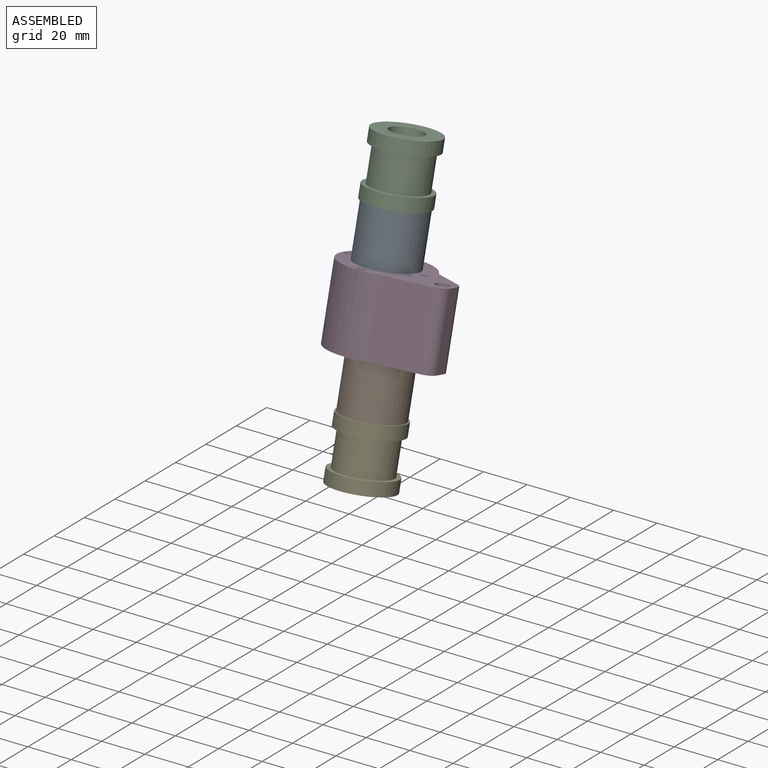
[diagram: assembled view]
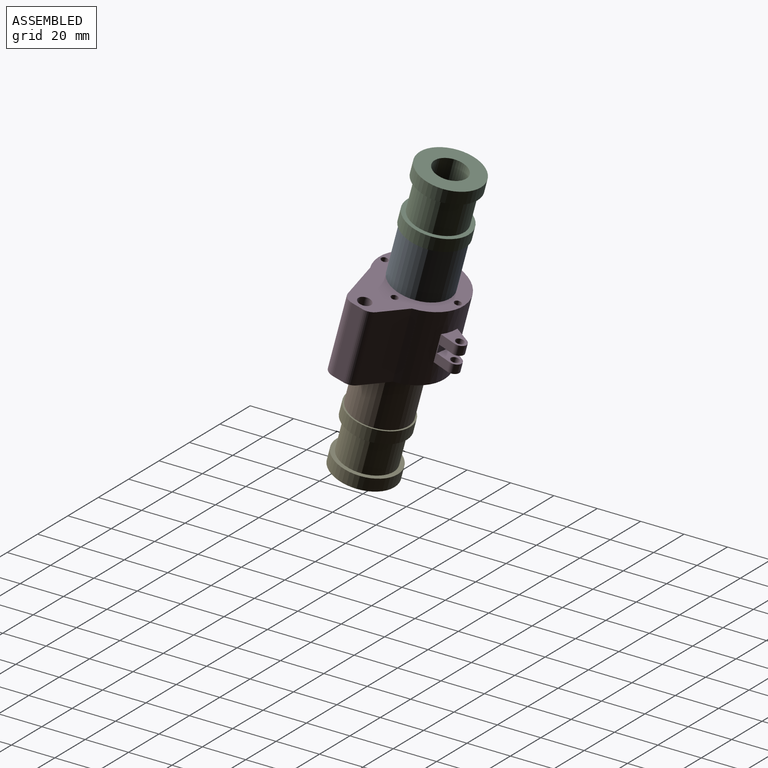
[diagram: assembled view, second angle]
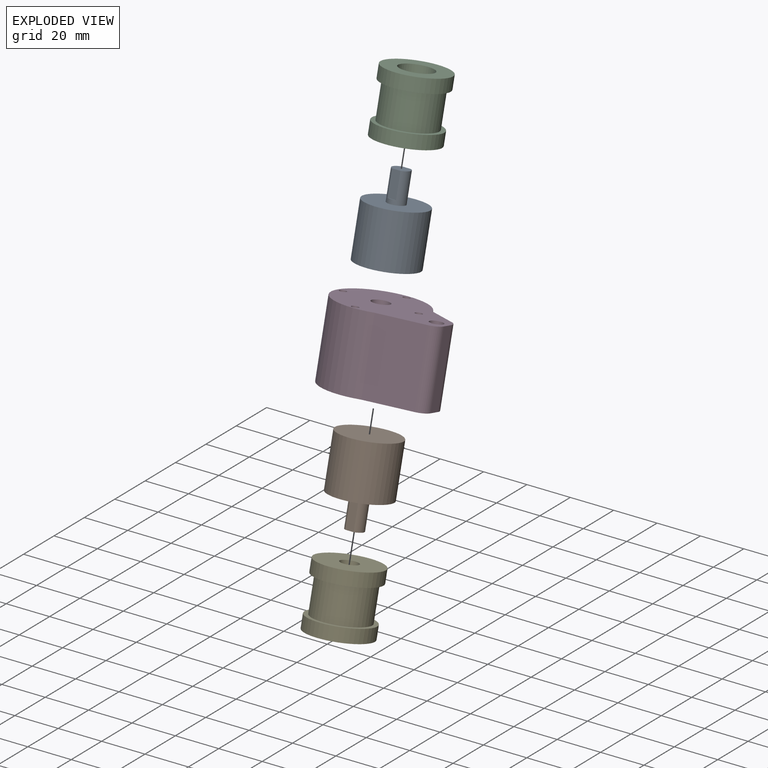
[diagram: exploded view]
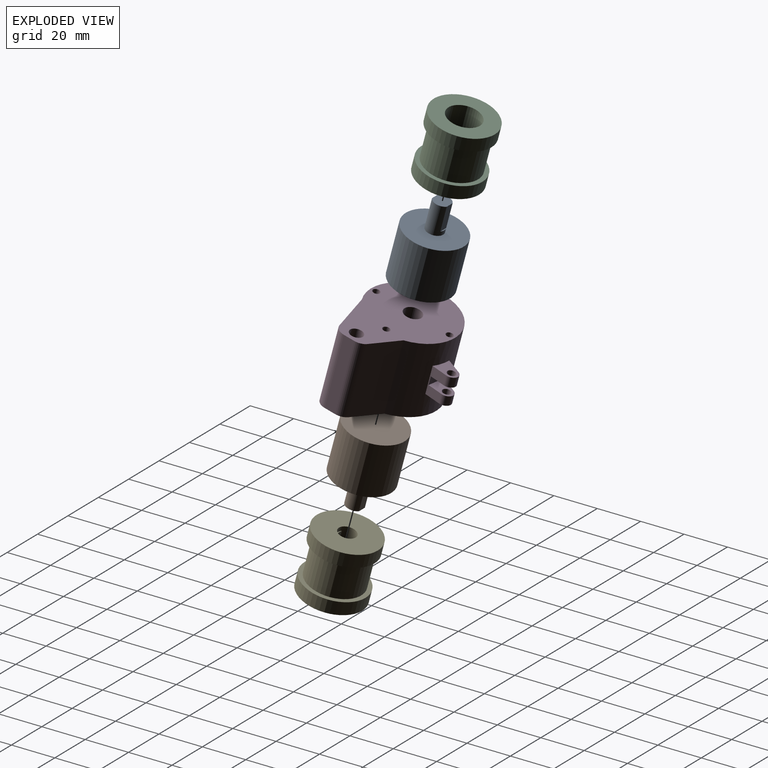
[diagram: exploded view, second angle]
ASSEMBLY  parts=5 mates=4
PART A: 9 faces, bbox 27.5x27.5x37.5 mm
  f0: cylinder r=13.75mm len=27.5mm, axis (0,0,-1), area 2073.5mm2, adj f1,f2
  f1: plane 27.5x27.5mm, normal (0,0,1), area 543.7mm2, adj f0,f3
  f2: plane 27.5x27.5mm, normal (0,0,-1), area 594mm2, adj f0
  f3: cylinder r=4mm len=13.5mm, axis (0,0,-1), area 246.3mm2, adj f1,f4,f5,f6,f7,f8
  f4: plane 11.5x3.87mm, normal (0,1,0), area 44.5mm2, adj f3,f6,f7
  f5: plane 11.5x3.87mm, normal (0,-1,0), area 44.5mm2, adj f3,f6,f8
  f6: plane 8x7mm, normal (0,0,1), area 47.6mm2, adj f3,f4,f5
  f7: plane 3.87x0.5mm, normal (0,0,1), area 1.3mm2, adj f3,f4
  f8: plane 3.87x0.5mm, normal (0,0,1), area 1.3mm2, adj f3,f5
PART B: same geometry as A
PART C: 16 faces, bbox 29x29x28 mm
  f0: cylinder r=4mm len=8mm, axis (0,0,-1), area 135.5mm2, adj f1,f8,f12,f13,f14,f15
  f1: plane 8x7mm, normal (0,0,-1), area 18.4mm2, adj f0,f11,f12,f14
  f2: cylinder r=12.5mm len=25mm, axis (0,0,-1), area 1256.6mm2, adj f4,f7
  f3: cylinder r=14.5mm len=29mm, axis (0,0,1), area 546.6mm2, adj f4,f5
  f4: plane 29x29mm, normal (0,0,-1), area 169.6mm2, adj f2,f3
  f5: plane 29x29mm, normal (0,0,1), area 483.8mm2, adj f3,f9
  f6: cylinder r=14.5mm len=29mm, axis (0,0,-1), area 546.6mm2, adj f7,f8
  f7: plane 29x29mm, normal (0,0,1), area 169.6mm2, adj f2,f6
  f8: plane 29x29mm, normal (0,0,-1), area 610.3mm2, adj f0,f6
  f9: cylinder r=7.5mm len=20mm, axis (0,0,1), area 942.5mm2, adj f5,f10
  f10: plane 15x15mm, normal (0,0,1), area 147.5mm2, adj f9,f11
  f11: cylinder r=3.05mm len=6.1mm, axis (0,0,-1), area 19.2mm2, adj f1,f10
  f12: plane 5x3.87mm, normal (0,1,0), area 19.4mm2, adj f0,f1,f13
  f13: plane 3.87x0.5mm, normal (0,0,-1), area 1.3mm2, adj f0,f12
  f14: plane 5x3.87mm, normal (0,-1,0), area 19.4mm2, adj f0,f1,f15
  f15: plane 3.87x0.5mm, normal (0,0,-1), area 1.3mm2, adj f0,f14
PART D: 30 faces, bbox 54.5x34x48.7 mm
  f0: cylinder r=3mm len=4.58mm, axis (0,1,0), area 16.8mm2, adj f1,f19,f25,f28
  f1: plane 4.58x0.08mm, normal (0.44,0,0.9), area 0.4mm2, adj f0,f2,f25,f28
  f2: cylinder r=3mm len=4.58mm, axis (0,1,0), area 21.6mm2, adj f1,f3,f25,f28
  f3: plane 7.04x4.58mm, normal (-0.9,0,0.44), area 36mm2, adj f2,f5,f25,f28
  f4: cylinder r=1.91mm len=4.58mm, axis (0,1,0), area 54.9mm2, adj f25,f28
  f5: cylinder r=20mm len=40mm, axis (0,1,0), area 3102.4mm2, adj f3,f11,f13,f14,f18,f19,f23,f25
  f6: cylinder r=4mm len=34mm, axis (0,1,0), area 854.5mm2, adj f11,f18
  f7: cylinder r=1.6mm len=34mm, axis (0,1,0), area 342.5mm2, adj f11,f18
  f8: cylinder r=1.6mm len=34mm, axis (0,1,0), area 342.5mm2, adj f11,f18
  f9: cylinder r=1.6mm len=34mm, axis (0,1,0), area 342.5mm2, adj f11,f18
  f10: cylinder r=1.6mm len=34mm, axis (0,1,0), area 342.5mm2, adj f11,f18
  f11: plane 54.47x40mm, normal (0,-1,0), area 1439.8mm2, adj f5,f6,f7,f8,f9,f10,f12,f13
  f12: cylinder r=5mm len=34mm, axis (0,1,0), area 185.2mm2, adj f11,f13,f17,f18
  f13: plane 34x13.71mm, normal (0.46,0,0.89), area 526mm2, adj f5,f11,f12,f18
  f14: plane 34x21.46mm, normal (0.22,0,-0.97), area 748.5mm2, adj f5,f11,f15,f18
  f15: cylinder r=5mm len=34mm, axis (0,1,0), area 228.8mm2, adj f11,f14,f17,f18
  f16: cylinder r=2.99mm len=34mm, axis (0,1,0), area 639.8mm2, adj f11,f18
  f17: plane 34x4.98mm, normal (1,0,0), area 169.5mm2, adj f11,f12,f15,f18
  f18: plane 54.47x40mm, normal (0,1,0), area 1439.8mm2, adj f5,f6,f7,f8,f9,f10,f12,f13
  f19: plane 13x7.14mm, normal (0.99,0,-0.11), area 66mm2, adj f0,f5,f20,f25,f26,f27,f28,f29
  f20: cylinder r=3mm len=4.37mm, axis (0,1,0), area 16mm2, adj f19,f21,f26,f29
  f21: plane 4.37x0.08mm, normal (0.44,0,0.9), area 0.4mm2, adj f20,f22,f26,f29
  f22: cylinder r=3mm len=4.37mm, axis (0,1,0), area 20.6mm2, adj f21,f23,f26,f29
  f23: plane 7.04x4.37mm, normal (-0.9,0,0.44), area 34.3mm2, adj f5,f22,f26,f29
  f24: cylinder r=1.91mm len=4.37mm, axis (0,1,0), area 52.4mm2, adj f26,f29
  f25: plane 10.51x9.25mm, normal (0,-1,0), area 51.2mm2, adj f0,f1,f2,f3,f4,f5,f19
  f26: plane 10.51x9.25mm, normal (0,1,0), area 51.2mm2, adj f5,f19,f20,f21,f22,f23,f24
  f27: plane 11.04x4.05mm, normal (0.11,0,0.99), area 44.9mm2, adj f5,f19,f28,f29
  f28: plane 11.8x10.11mm, normal (0,1,0), area 54.8mm2, adj f0,f1,f2,f3,f4,f5,f19,f27
  f29: plane 11.8x10.11mm, normal (0,-1,0), area 54.8mm2, adj f5,f19,f20,f21,f22,f23,f24,f27
PART E: same geometry as C
PLACE A rot(axis=(-1,0,0),15deg) t=(-21.37,23.97,-11.94)mm
PLACE B rot(axis=(1,0,0),165deg) t=(-16.86,14.15,-44.51)mm
PLACE C rot(axis=(-1,0,0),15deg) t=(-21.37,33.81,24.76)mm
PLACE D rot(axis=(-1,0,0),105deg) t=(-21.37,19.57,-28.36)mm
PLACE E rot(axis=(1,0,0),165deg) t=(-16.86,4.32,-81.21)mm
MATE fastened B.f0 <-> D.f18  axis (0,0.26,0.97) through (-16.86,14.15,-44.51)mm
MATE fastened C.f6 <-> A.f3  axis (0,-0.26,-0.97) through (-21.37,30.18,11.24)mm
MATE fastened A.f0 <-> D.f5  axis (0,-0.26,-0.97) through (-21.37,23.97,-11.94)mm
MATE fastened E.f6 <-> B.f0  axis (0,0.26,0.97) through (-16.86,7.94,-67.69)mm
